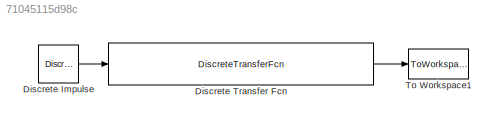
MODEL slx_71045115d98c
KIND model
CONFIG AbsTol = auto
CONFIG EnableMultiTasking = off
CONFIG FixedStep = auto
CONFIG MaxStep = auto
CONFIG MinStep = auto
CONFIG RelTol = 1e-3
CONFIG SampleTimeConstraint = Unconstrained
CONFIG Solver = VariableStepAuto
CONFIG SolverName = VariableStepAuto
CONFIG StartTime = 0.0
CONFIG StopTime = 10
BLOCK [Reference] Discrete Impulse  REF=dspsrcs4/Discrete 
Impulse
  Ports = [0, 1]
  SourceBlock = dspsrcs4/Discrete \nImpulse
  SourceProductBaseCode = DS
  SourceProductName = DSP System Toolbox
  SourceType = Discrete Impulse
BLOCK [DiscreteTransferFcn] Discrete Transfer Fcn
  Denominator = [1 -3.1 3.4125 -1.525 .2125 0]
  InputPortMap = u0
  Numerator = [2 -2.5 2.5 -.5]
  Ports = [1, 1]
  SampleTime = 1
BLOCK [ToWorkspace] To Workspace1
  FixptAsFi = on
  MaxDataPoints = inf
  Ports = [1]
  SampleTime = -1
  Save2DSignal = 3-D array (concatenate along third dimension)
  SaveFormat = Timeseries
  VariableName = Yimpulso
LINE Discrete Impulse:1 -> Discrete Transfer Fcn:1
LINE Discrete Transfer Fcn:1 -> To Workspace1:1
